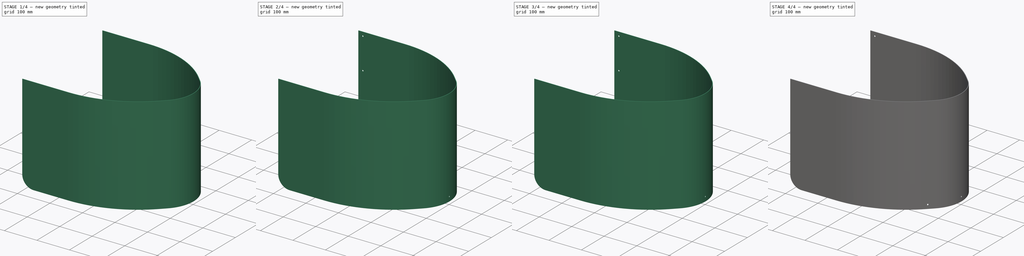
[diagram: build sequence overview — one tinted view per stage of 4, left to right]
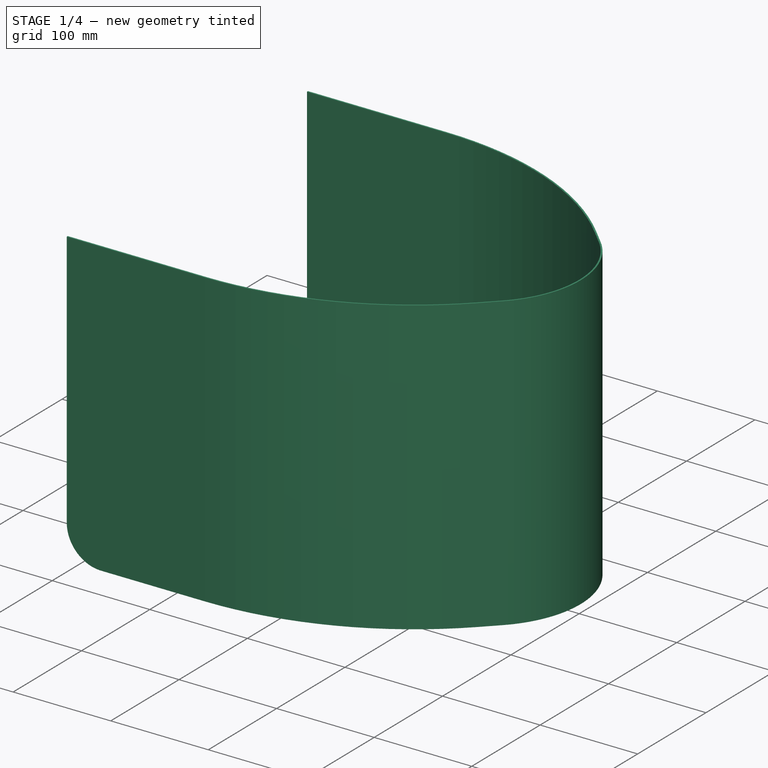
[diagram: stage 1 of 4 — iso view after this stage's code; geometry added in this stage tinted green]
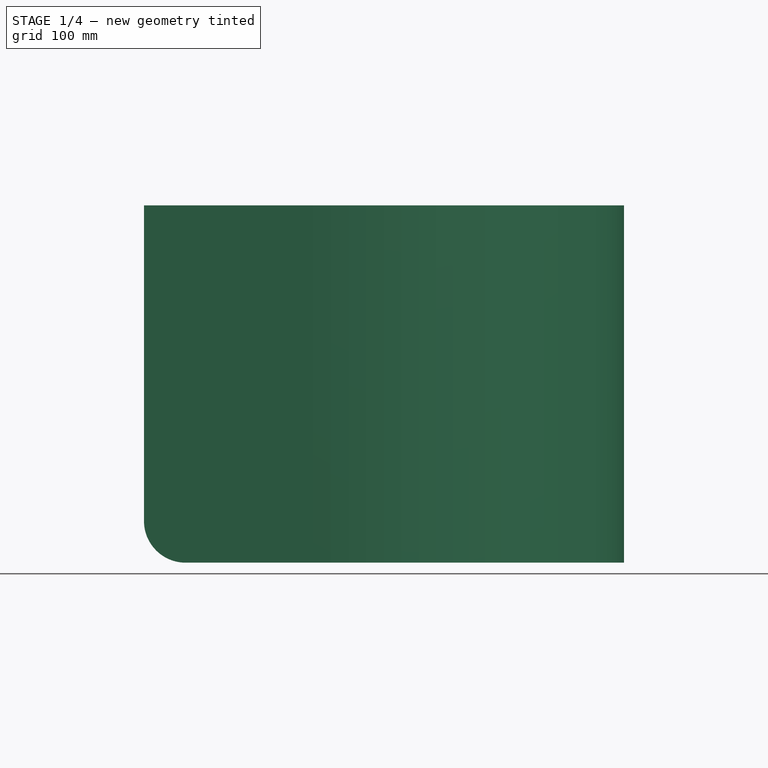
[diagram: stage 1 of 4 — front view after this stage's code; geometry added in this stage tinted green]
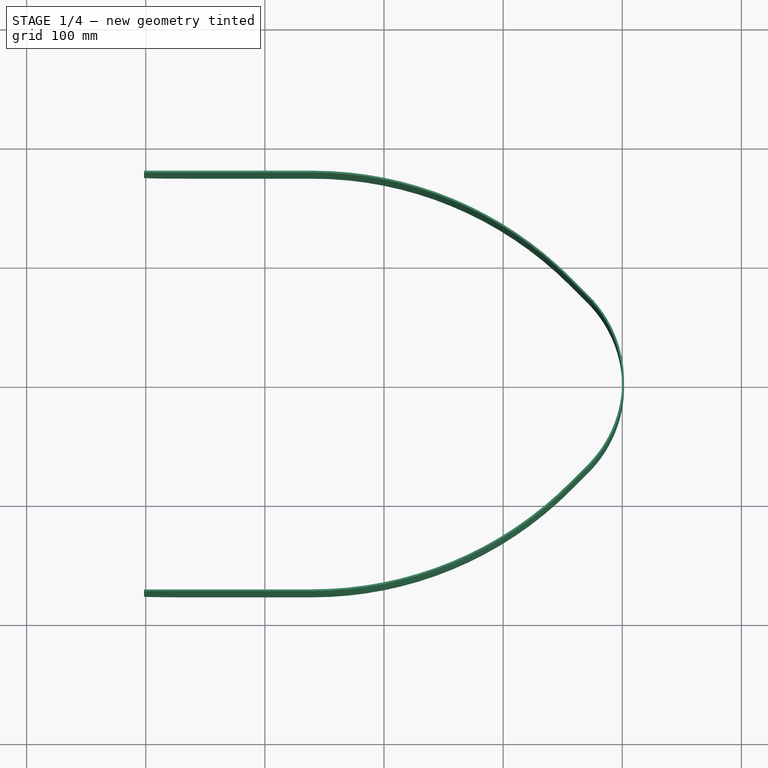
[diagram: stage 1 of 4 — top view after this stage's code; geometry added in this stage tinted green]
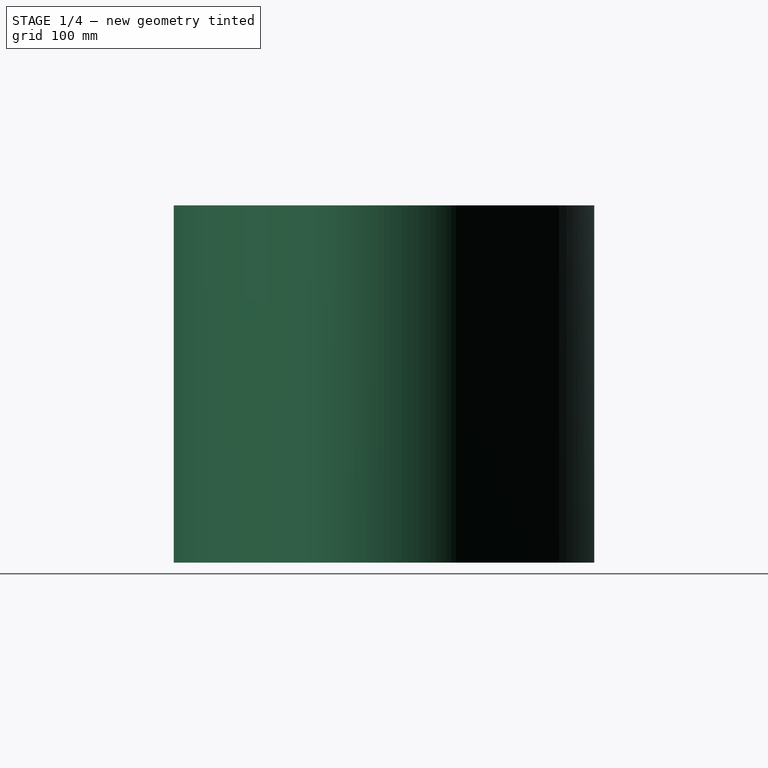
[diagram: stage 1 of 4 — right view after this stage's code; geometry added in this stage tinted green]
FCSTD DOCUMENT  (FreeCAD 0.20R29410 (Git))
Label: Tailbox Exterior
License: All rights reserved
LicenseURL: http://en.wikipedia.org/wiki/All_rights_reserved
objects: TechDraw::DrawViewDimension×20, Sketcher::SketchObject×8, PartDesign::Pocket×6, PartDesign::Plane×5, PartDesign::Mirrored×2, PartDesign::Pad×1, PartDesign::Thickness×1, TechDraw::DrawSVGTemplate×1, PartDesign::Fillet×1, PartDesign::Body×1, TechDraw::DrawViewPart×1, TechDraw::DrawPage×1, Spreadsheet::Sheet×1
note: 34 computed .brp shape members not serialized (recipe doc carries the construction recipe); baked Part::Feature solids carry a one-line shape summary decoded from their .brp
EXTERNAL_REF file=Tailbox.FCStd obj=Spreadsheet

FEATURE [Sketcher::SketchObject] Sketch
  FullyConstrained = true
  MapMode = 3
  Placement = pos=(0,0,0) rot=(1,0,0;3.14159rad)
  Support = -> [XZ_Plane]
  expr: Constraints[16] = <<Tailbox>>#<<dims>>.length
  expr: Constraints[17] = <<Tailbox>>#<<dims>>.width
  expr: Constraints[18] = <<Tailbox>>#<<dims>>.tip_radius
  expr: Constraints[19] = <<Tailbox>>#<<dims>>.taper_angle
  expr: Constraints[20] = <<Tailbox>>#<<dims>>.straight_dist
  expr: Constraints[21] = -<<Tailbox>>#<<dims>>.thickness
  sketch-geometry (14):
    g0: LineSegment StartX=140 StartY=175 StartZ=0 EndX=-1.5 EndY=175 EndZ=0
    g1: LineSegment StartX=-1.5 StartY=175 StartZ=0 EndX=-1.5 EndY=-175 EndZ=0
    g2: LineSegment StartX=-1.5 StartY=-175 StartZ=0 EndX=140 EndY=-175 EndZ=0
    g3: LineSegment StartX=355.815 StartY=85.6066 StartZ=0 EndX=370.711 EndY=70.7107 EndZ=0
    g4: LineSegment StartX=355.815 StartY=-85.6066 StartZ=0 EndX=370.711 EndY=-70.7107 EndZ=0
    g5: ArcOfCircle CenterX=140 CenterY=-130.208 CenterZ=0 NormalX=0 NormalY=0 NormalZ=1 AngleXU=0 Radius=305.208 StartAngle=0.785398 EndAngle=1.5708
    g6: ArcOfCircle CenterX=140 CenterY=130.208 CenterZ=0 NormalX=0 NormalY=0 NormalZ=1 AngleXU=0 Radius=305.208 StartAngle=4.71239 EndAngle=5.49779
    g7: ArcOfCircle CenterX=300 CenterY=0 CenterZ=0 NormalX=0 NormalY=0 NormalZ=1 AngleXU=0 Radius=100 StartAngle=5.49779 EndAngle=7.06858
    g8: LineSegment StartX=0 StartY=0 StartZ=0 EndX=400 EndY=0 EndZ=0
    g9: LineSegment StartX=189.09 StartY=171.026 StartZ=0 EndX=279.636 EndY=141.184 EndZ=0
    g10: LineSegment StartX=279.636 StartY=141.184 StartZ=0 EndX=356.558 EndY=84.8635 EndZ=0
    g11: LineSegment StartX=356.558 StartY=84.8635 StartZ=0 EndX=400 EndY=0 EndZ=0
    g12: LineSegment StartX=93.8365 StartY=175 StartZ=0 EndX=189.09 EndY=171.026 EndZ=0
    g13: LineSegment StartX=-1.5 StartY=175 StartZ=0 EndX=93.8365 EndY=175 EndZ=0
  constraints (38):
    c: Horizontal(g0)
    c: Coincident(g0,g1)
    c: Coincident(g1,g2)
    c: Horizontal(g2)
    c: Tangent(g5,g0) = -1.5708
    c: Tangent(g6,g2) = -1.5708
    c: Equal(g6,g5)
    c: Equal(g0,g2)
    c: Tangent(g5,g3) = 1.5708
    c: Tangent(g6,g4) = -1.5708
    c: Tangent(g7,g4) = -1.5708
    c: Tangent(g7,g3) = 1.5708
    c: PointOnObject(g7,g-1)
    c: Coincident(g8,g-1)
    c: PointOnObject(g8,g7)
    c: Horizontal(g8)
    c: DistanceX(g8,g8) = 400
    c: DistanceY(g1,g1) = 350
    c: Radius(g7) = 100
    c: Angle(g3,g-1) = 0.785398
    c: DistanceX(g0) = 140
    c: DistanceX(g0) = -1.5
    c: Symmetric(g1,g0,g-1)
    c: Coincident(g9,g10)
    c: Coincident(g10,g11)
    c: Coincident(g11,g8)
    c: Coincident(g12,g9)
    c: Coincident(g13,g0)
    c: Coincident(g13,g12)
    c: Horizontal(g13)
    c: Equal(g9,g10)
    c: Equal(g10,g11)
    c: Equal(g11,g12)
    c: Equal(g12,g13)
    c: PointOnObject(g9,g5)
    c: PointOnObject(g9,g5)
    c: PointOnObject(g10,g3)
    c: DistanceX(g13,g13) = 95.3365
FEATURE [PartDesign::Pad] Pad
  AlongSketchNormal = false
  Direction = (0,2e-16,-1)
  Length = 300
  Length2 = 300
  Placement = pos=(0,0,0) rot=(1,0,0;1.5708rad)
  Profile = -> Sketch
  ReferenceAxis = -> Sketch [N_Axis]
  Reversed = true
  Type = 0
  expr: Length = <<Tailbox>>#<<dims>>.height
FEATURE [PartDesign::Thickness] Thickness
  Base = -> Pad [Face9,Face3,Face10]
  BaseFeature = -> Pad
  Intersection = false
  Join = 0
  Mode = 0
  SupportTransform = false
  Value = 1.5
  expr: Value = <<Tailbox>>#<<dims>>.thickness
FEATURE [TechDraw::DrawSVGTemplate] Template
  EditableTexts = Designed_by_Name=Designed by Name; Drawing_number=Drawing number; FC-Date=Date; FC-SC=Scale; FC-SH=Sheet; FC-Title=Title; Subtitle=Subtitle; Weight=Weight
  Height = 210
  Orientation = 1
  Width = 297
FEATURE [PartDesign::Plane] DatumPlane  label="TipPlane"
  AttachmentOffset = pos=(0,0,398) rot=(0,0,1;0rad)
  Length = 420.742
  MapMode = 5
  Placement = pos=(398,-8.84e-14,8.84e-14) rot=(0.57735,0.57735,0.57735;2.0944rad)
  ResizeMode = 0
  Support = -> [YZ_Plane]
  Width = 392.742
  expr: .AttachmentOffset.Base.z = Tailbox#<<dims>>.length - 2
FEATURE [Sketcher::SketchObject] Sketch004
  FullyConstrained = true
  MapMode = 5
  Placement = pos=(398,-8.84e-14,8.84e-14) rot=(0.57735,0.57735,0.57735;2.0944rad)
  Support = -> [DatumPlane]
  expr: Constraints[1] = Tailbox#<<dims>>.bolt_inset + Tailbox#<<dims>>.thickness
  expr: Constraints[2] = Tailbox#<<dims>>.bolt_d
  sketch-geometry (1):
    g0: Circle CenterX=0 CenterY=13.5 CenterZ=0 NormalX=0 NormalY=0 NormalZ=1 AngleXU=0 Radius=2.1
  constraints (3):
    c: PointOnObject(g0,g-2)
    c: DistanceY(g0) = 13.5
    c: Diameter(g0) = 4.2
FEATURE [Sketcher::SketchObject] Sketch006
  ExternalGeometry = -> [Sketch]
  FullyConstrained = true
  MapMode = 5
  Support = -> [XY_Plane]
  sketch-geometry (5):
    g0: LineSegment StartX=-1.5 StartY=175 StartZ=0 EndX=93.8365 EndY=175 EndZ=0
    g1: LineSegment StartX=93.8365 StartY=175 StartZ=0 EndX=189.09 EndY=171.026 EndZ=0
    g2: LineSegment StartX=189.09 StartY=171.026 StartZ=0 EndX=279.636 EndY=141.184 EndZ=0
    g3: LineSegment StartX=279.636 StartY=141.184 StartZ=0 EndX=356.558 EndY=84.8635 EndZ=0
    g4: LineSegment StartX=356.558 StartY=84.8635 StartZ=0 EndX=400 EndY=0 EndZ=0
  constraints (15):
    c: Coincident(g-3,g0)
    c: PointOnObject(g0,g-3)
    c: Coincident(g0,g1)
    c: PointOnObject(g1,g-4)
    c: PointOnObject(g2,g-4)
    c: Coincident(g2,g3)
    c: PointOnObject(g3,g-5)
    c: Coincident(g3,g4)
    c: PointOnObject(g4,g-6)
    c: PointOnObject(g4,g-1)
    c: Coincident(g1,g2)
    c: Equal(g0,g1)
    c: Equal(g1,g2)
    c: Equal(g2,g3)
    c: Equal(g3,g4)
FEATURE [PartDesign::Plane] DatumPlane003  label="SidePlane"
  Length = 500.961
  MapMode = 5
  Placement = pos=(0,175,3.89e-14) rot=(-1,0,0;1.5708rad)
  ResizeMode = 0
  Support = -> [Pad]
  Width = 399.461
FEATURE [PartDesign::Fillet] Fillet
  Base = -> Thickness [Edge31,Edge23]
  BaseFeature = -> Thickness
  Radius = 35
  SupportTransform = false
  UseAllEdges = false
  expr: Radius = Tailbox#<<dims>>.corner_radius
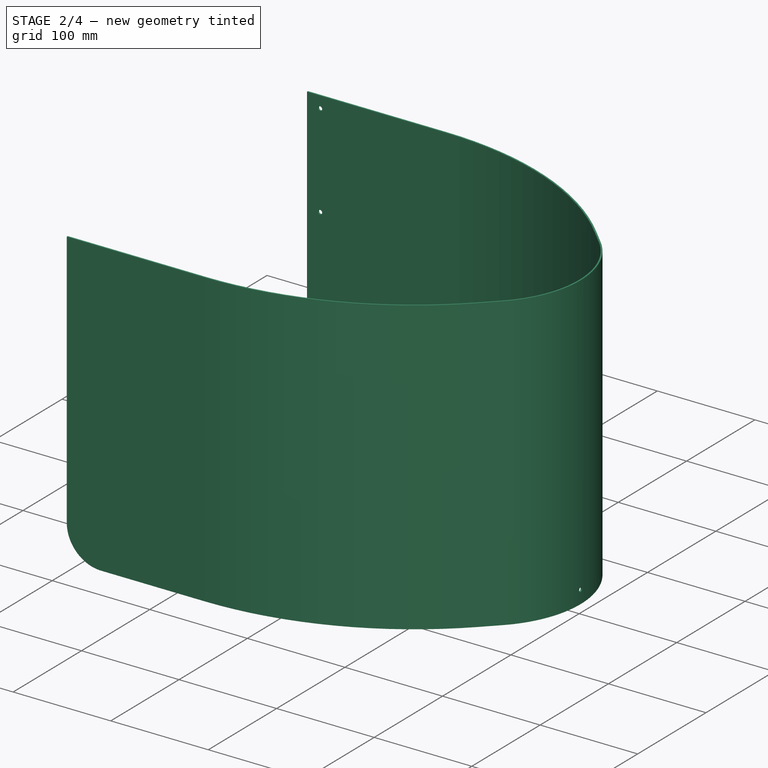
[diagram: stage 2 of 4 — iso view after this stage's code; geometry added in this stage tinted green]
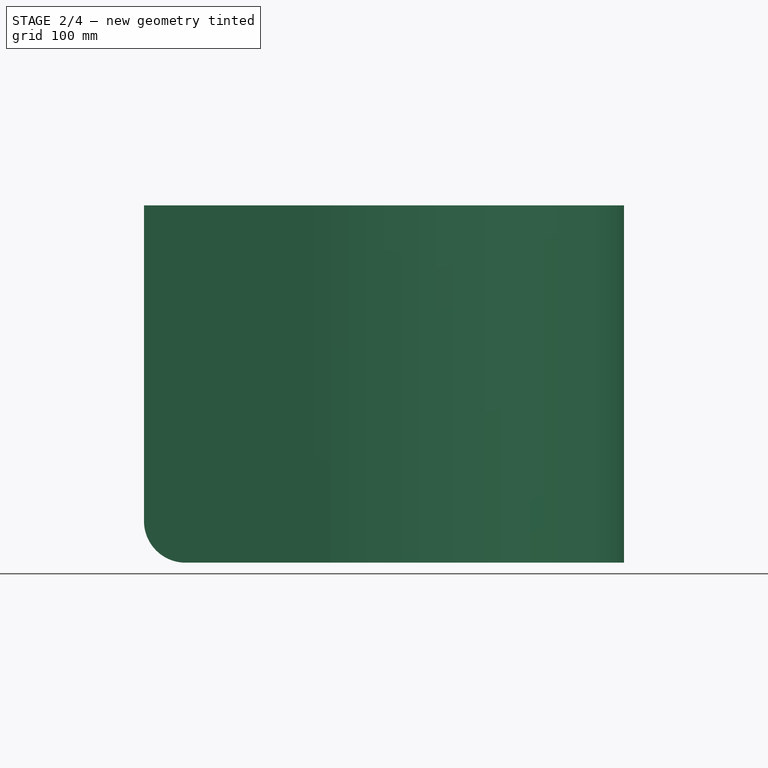
[diagram: stage 2 of 4 — front view after this stage's code; geometry added in this stage tinted green]
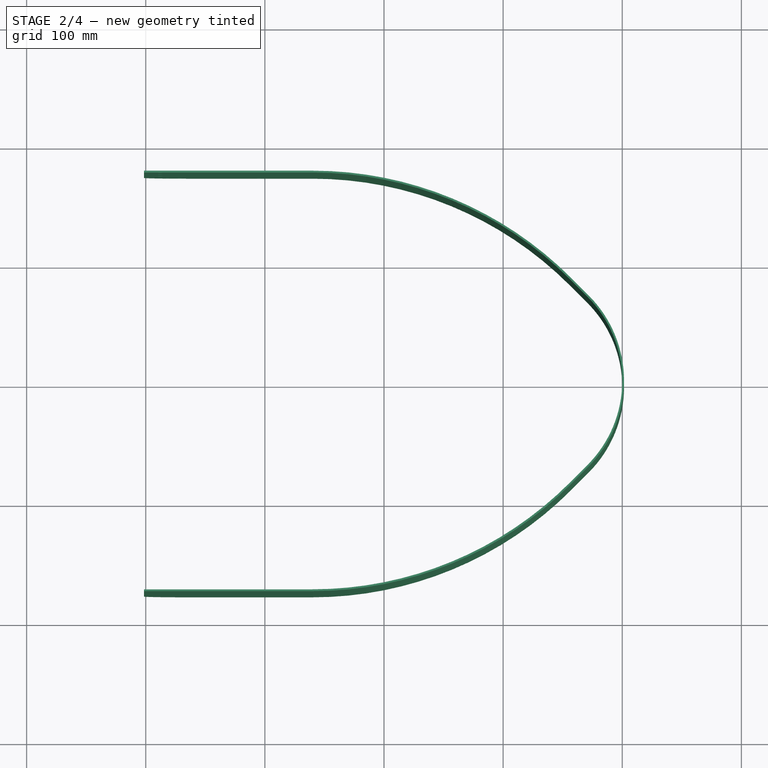
[diagram: stage 2 of 4 — top view after this stage's code; geometry added in this stage tinted green]
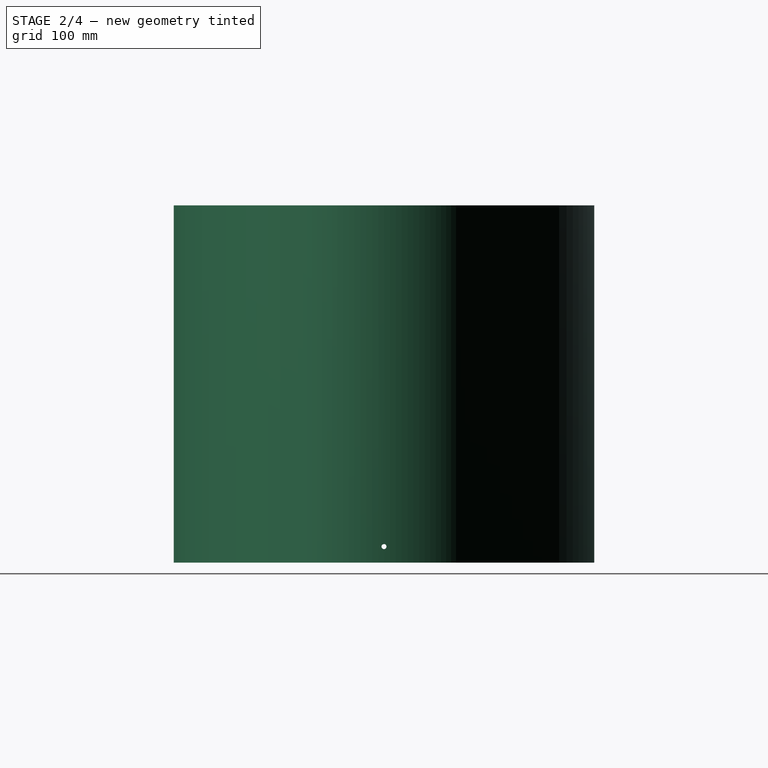
[diagram: stage 2 of 4 — right view after this stage's code; geometry added in this stage tinted green]
FEATURE [Sketcher::SketchObject] Sketch003
  ExternalGeometry = -> [Fillet]
  FullyConstrained = true
  MapMode = 5
  Placement = pos=(0,175,3.89e-14) rot=(-1,0,0;1.5708rad)
  Support = -> [DatumPlane003]
  expr: Constraints[15] = Tailbox#<<dims>>.bolt_inset + Tailbox#<<dims>>.thickness
  expr: Constraints[22] = Tailbox#<<dims>>.bolt_d
  sketch-geometry (10):
    g0: Circle CenterX=18.2972 CenterY=-19.7972 CenterZ=0 NormalX=0 NormalY=0 NormalZ=1 AngleXU=0 Radius=2.1
    g1: Circle CenterX=28.9038 CenterY=-30.4038 CenterZ=0 NormalX=0 NormalY=0 NormalZ=1 AngleXU=0 Radius=2.1
    g2: LineSegment StartX=33.5 StartY=-6.39e-14 StartZ=0 EndX=18.2972 EndY=-19.7972 EndZ=0
    g3: LineSegment StartX=18.2972 StartY=-19.7972 StartZ=0 EndX=-1.5 EndY=-35 EndZ=0
    g4: LineSegment StartX=-1.5 StartY=-35 StartZ=0 EndX=28.9038 EndY=-30.4038 EndZ=0
    g5: LineSegment StartX=28.9038 StartY=-30.4038 StartZ=0 EndX=33.5 EndY=-6.39e-14 EndZ=0
    g6: LineSegment StartX=28.9038 StartY=-30.4038 StartZ=0 EndX=18.2972 EndY=-19.7972 EndZ=0
    g7: LineSegment StartX=33.5 StartY=-6.39e-14 StartZ=0 EndX=8.75126 EndY=-10.2513 EndZ=0
    g8: LineSegment StartX=8.75126 StartY=-10.2513 StartZ=0 EndX=-1.5 EndY=-35 EndZ=0
    g9: LineSegment StartX=18.2972 StartY=-19.7972 StartZ=0 EndX=8.75126 EndY=-10.2513 EndZ=0
  constraints (23):
    c: Coincident(g2,g3)
    c: Coincident(g3,g4)
    c: Coincident(g4,g5)
    c: Coincident(g5,g2)
    c: Coincident(g0,g2)
    c: Coincident(g1,g4)
    c: Equal(g2,g3)
    c: Equal(g4,g5)
    c: Distance(g6) = 15
    c: Coincident(g6,g0)
    c: Coincident(g6,g1)
    c: Coincident(g7,g8)
    c: Coincident(g3,g8)
    c: Coincident(g2,g7)
    c: Coincident(g7,g9)
    c: Distance(g9) = 13.5
    c: Coincident(g0,g9)
    c: Equal(g1,g0)
    c: PointOnObject(g8,g-3)
    c: Coincident(g3,g-3)
    c: Coincident(g2,g-3)
    c: Parallel(g9,g6)
    c: Diameter(g1) = 4.2
FEATURE [PartDesign::Pocket] Pocket
  BaseFeature = -> Fillet
  Direction = (0,-1,-2e-16)
  Length = 4.5
  Length2 = 5
  Midplane = true
  Profile = -> Sketch003
  ReferenceAxis = -> Sketch003 [N_Axis]
  Type = 0
  expr: Length = 3 * <<Tailbox>>#<<dims>>.thickness
FEATURE [PartDesign::Pocket] Pocket001
  BaseFeature = -> Pocket
  Direction = (-1,1e-16,-1e-16)
  Length = 7.5
  Length2 = 5
  Midplane = true
  Profile = -> Sketch004
  ReferenceAxis = -> Sketch004 [N_Axis]
  Type = 0
  expr: Length = 5 * Tailbox#<<dims>>.thickness
FEATURE [Sketcher::SketchObject] Sketch005
  ExternalGeometry = -> [Pocket001]
  FullyConstrained = true
  MapMode = 5
  Placement = pos=(0,175,3.89e-14) rot=(-1,0,0;1.5708rad)
  Support = -> [DatumPlane003]
  expr: Constraints[15] = Tailbox#<<dims>>.bolt_inset
  expr: Constraints[1] = -Tailbox#<<dims>>.bolt_inset - Tailbox#<<dims>>.thickness
  expr: Constraints[21] = Tailbox#<<dims>>.bolt_inset
  expr: Constraints[4] = Tailbox#<<dims>>.bolt_inset
  expr: Constraints[5] = Tailbox#<<dims>>.bolt_d
  sketch-geometry (8):
    g0: Circle CenterX=95 CenterY=-13.5 CenterZ=0 NormalX=0 NormalY=0 NormalZ=1 AngleXU=0 Radius=2.1
    g1: Circle CenterX=12 CenterY=-192 CenterZ=0 NormalX=0 NormalY=0 NormalZ=1 AngleXU=0 Radius=2.1
    g2: Circle CenterX=12 CenterY=-96 CenterZ=0 NormalX=0 NormalY=0 NormalZ=1 AngleXU=0 Radius=2.1
    g3: LineSegment StartX=95 StartY=-13.5 StartZ=0 EndX=12 EndY=-13.5 EndZ=0
    g4: LineSegment StartX=12 StartY=-96 StartZ=0 EndX=12 EndY=-192 EndZ=0
    g5: LineSegment StartX=12 StartY=-192 StartZ=0 EndX=12 EndY=-288 EndZ=0
    g6: Circle CenterX=12 CenterY=-288 CenterZ=0 NormalX=0 NormalY=0 NormalZ=1 AngleXU=0 Radius=2.1
    g7: LineSegment StartX=12 StartY=-96 StartZ=0 EndX=12 EndY=0 EndZ=0
  constraints (22):
    c: DistanceX(g0,g-1) = -95
    c: DistanceY(g0) = -13.5
    c: Coincident(g3,g0)
    c: Horizontal(g3)
    c: DistanceX(g3) = 12
    c: Diameter(g0) = 4.2
    c: Coincident(g4,g1)
    c: Coincident(g2,g4)
    c: Vertical(g4)
    c: Equal(g1,g2)
    c: Coincident(g5,g4)
    c: Vertical(g5)
    c: Equal(g5,g4)
    c: Coincident(g6,g5)
    c: Equal(g6,g1)
    c: DistanceY(g-3,g5) = 12
    c: Equal(g2,g0)
    c: PointOnObject(g7,g-1)
    c: Coincident(g2,g7)
    c: Vertical(g7)
    c: Equal(g4,g7)
    c: DistanceX(g7) = 12
FEATURE [PartDesign::Pocket] Pocket002
  BaseFeature = -> Pocket001
  Direction = (0,-1,-2e-16)
  Length = 4.5
  Length2 = 5
  Midplane = true
  Profile = -> Sketch005
  ReferenceAxis = -> Sketch005 [N_Axis]
  Type = 0
  expr: Length = 3 * Tailbox#<<dims>>.thickness
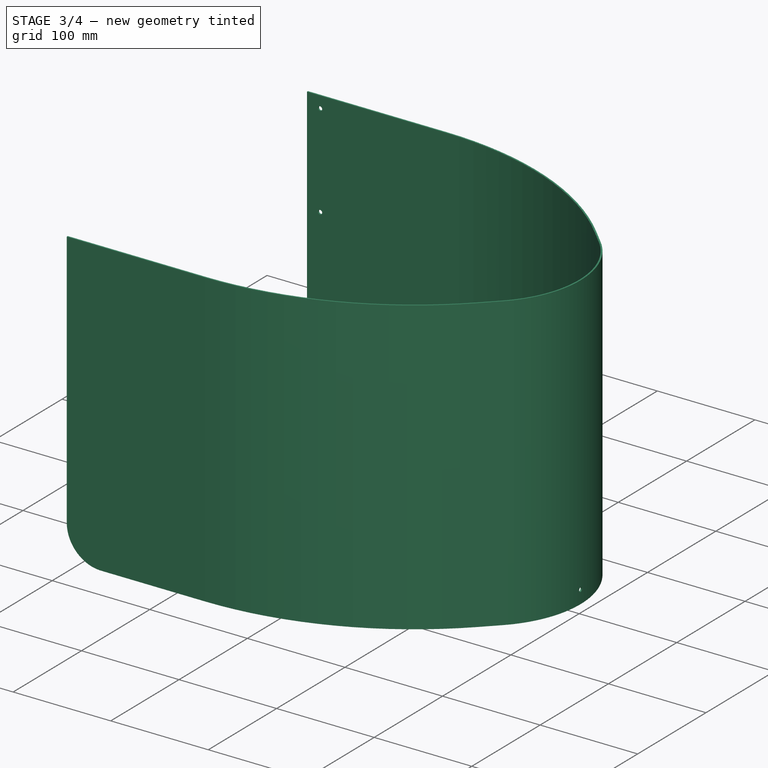
[diagram: stage 3 of 4 — iso view after this stage's code; geometry added in this stage tinted green]
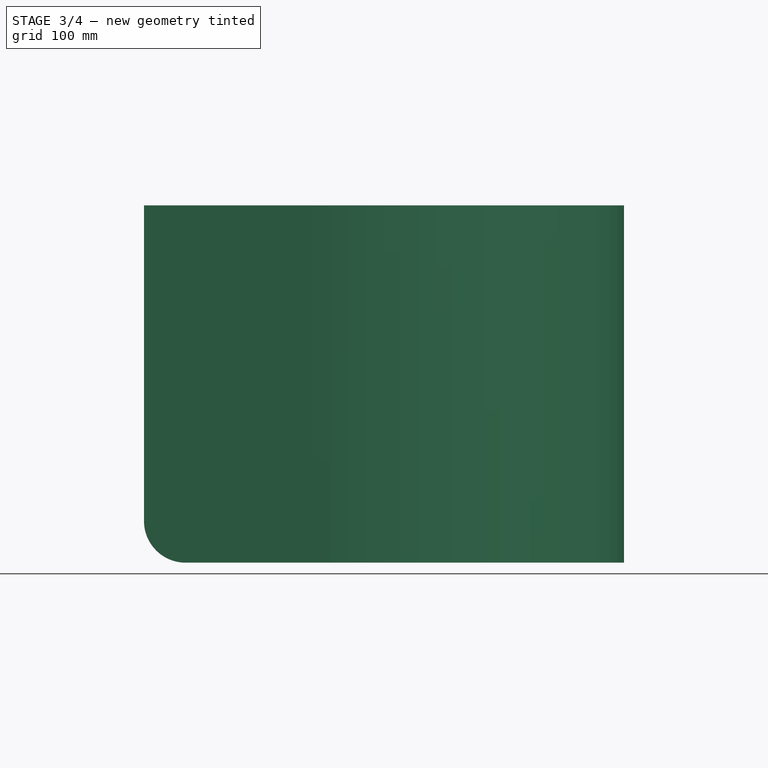
[diagram: stage 3 of 4 — front view after this stage's code; geometry added in this stage tinted green]
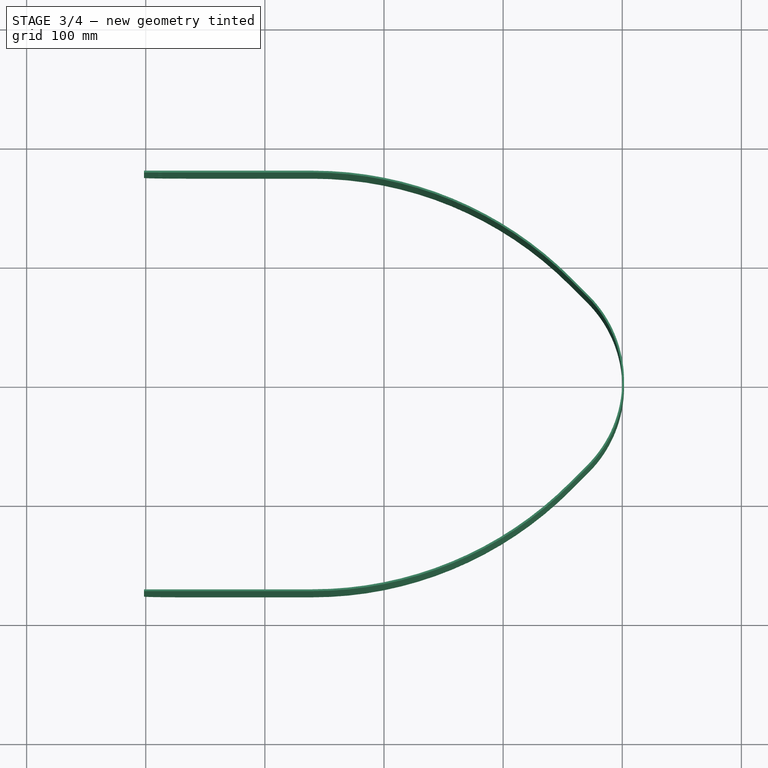
[diagram: stage 3 of 4 — top view after this stage's code; geometry added in this stage tinted green]
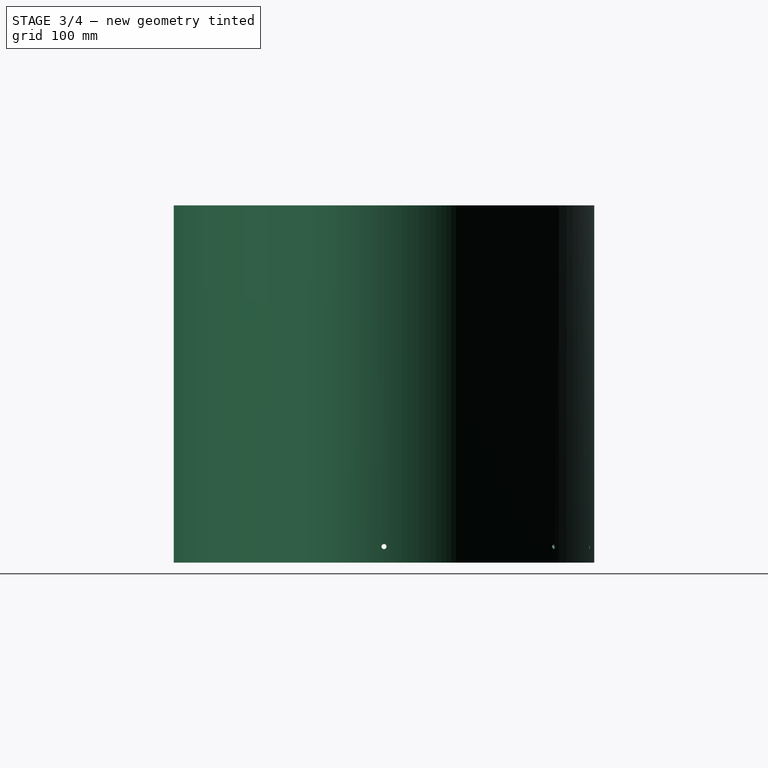
[diagram: stage 3 of 4 — right view after this stage's code; geometry added in this stage tinted green]
FEATURE [PartDesign::Plane] DatumPlane004
  Length = 556.53
  MapMode = 6
  Placement = pos=(189.09,171.026,0) rot=(0.993511,-0.080422,-0.080422;1.57731rad)
  ResizeMode = 0
  Support = -> [Sketch006,Pocket002]
  Width = 403.806
FEATURE [Sketcher::SketchObject] Sketch008
  FullyConstrained = true
  MapMode = 5
  Placement = pos=(189.09,171.026,0) rot=(0.993511,-0.080422,-0.080422;1.57731rad)
  Support = -> [DatumPlane004]
  expr: Constraints[1] = Tailbox#<<dims>>.bolt_inset + Tailbox#<<dims>>.thickness
  expr: Constraints[2] = Tailbox#<<dims>>.bolt_d
  sketch-geometry (1):
    g0: Circle CenterX=0 CenterY=13.5 CenterZ=0 NormalX=0 NormalY=0 NormalZ=1 AngleXU=0 Radius=2.1
  constraints (3):
    c: PointOnObject(g0,g-2)
    c: DistanceY(g0) = 13.5
    c: Diameter(g0) = 4.2
FEATURE [PartDesign::Pocket] Pocket003
  BaseFeature = -> Pocket002
  Direction = (0.160841,0.98698,1e-16)
  Length = 4.5
  Length2 = 5
  Midplane = true
  Profile = -> Sketch008
  ReferenceAxis = -> Sketch008 [N_Axis]
  Type = 0
  expr: Length = 3 * Tailbox#<<dims>>.thickness
FEATURE [PartDesign::Plane] DatumPlane005
  Length = 624.59
  MapMode = 6
  Placement = pos=(279.636,141.184,0) rot=(0.946055,-0.229107,-0.229107;1.62622rad)
  ResizeMode = 0
  Support = -> [Sketch006,Pocket003]
  Width = 408.843
FEATURE [Sketcher::SketchObject] Sketch009
  FullyConstrained = true
  MapMode = 5
  Placement = pos=(279.636,141.184,0) rot=(0.946055,-0.229107,-0.229107;1.62622rad)
  Support = -> [DatumPlane005]
  expr: Constraints[1] = Tailbox#<<dims>>.bolt_inset + Tailbox#<<dims>>.thickness
  expr: Constraints[2] = Tailbox#<<dims>>.bolt_d
  sketch-geometry (1):
    g0: Circle CenterX=0 CenterY=13.5 CenterZ=0 NormalX=0 NormalY=0 NormalZ=1 AngleXU=0 Radius=2.1
  constraints (3):
    c: PointOnObject(g0,g-2)
    c: DistanceY(g0) = 13.5
    c: Diameter(g0) = 4.2
FEATURE [PartDesign::Pocket] Pocket004
  BaseFeature = -> Pocket003
  Direction = (0.45751,0.889205,1e-16)
  Length = 4.5
  Length2 = 5
  Midplane = true
  Profile = -> Sketch009
  ReferenceAxis = -> Sketch009 [N_Axis]
  Type = 0
  expr: Length = 3 * Tailbox#<<dims>>.thickness
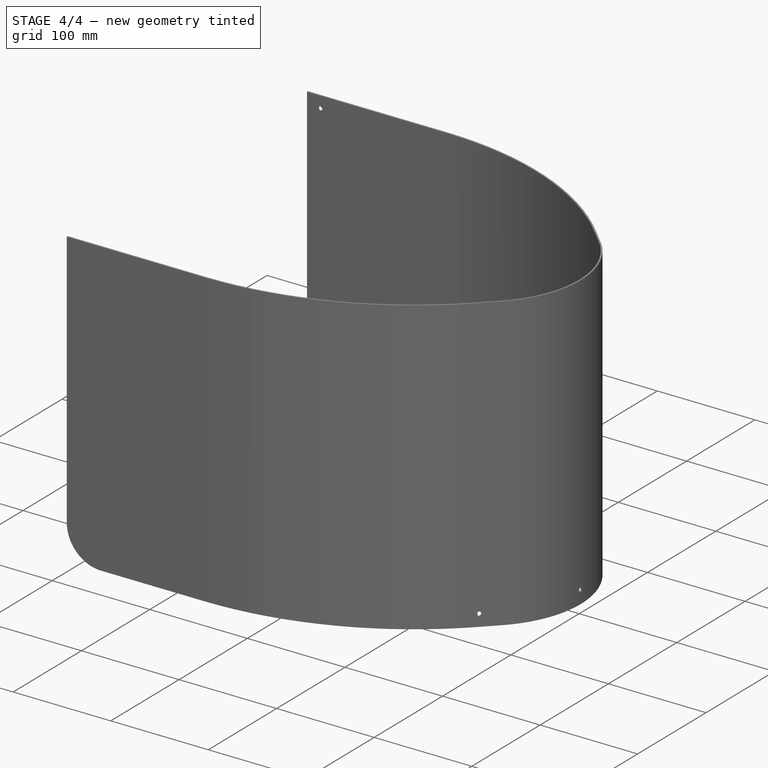
[diagram: stage 4 of 4 — iso view after this stage's code; geometry added in this stage tinted green]
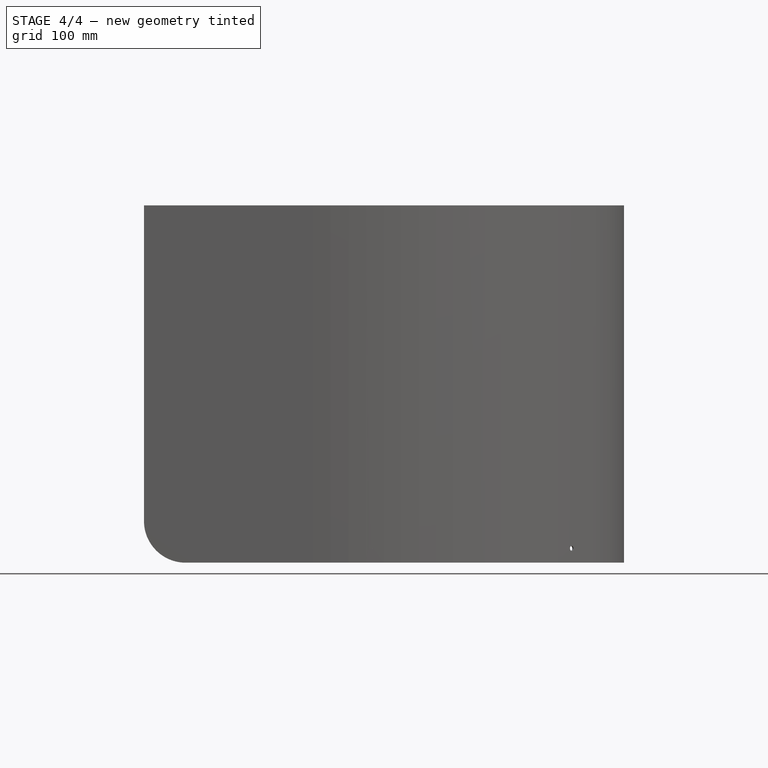
[diagram: stage 4 of 4 — front view after this stage's code; geometry added in this stage tinted green]
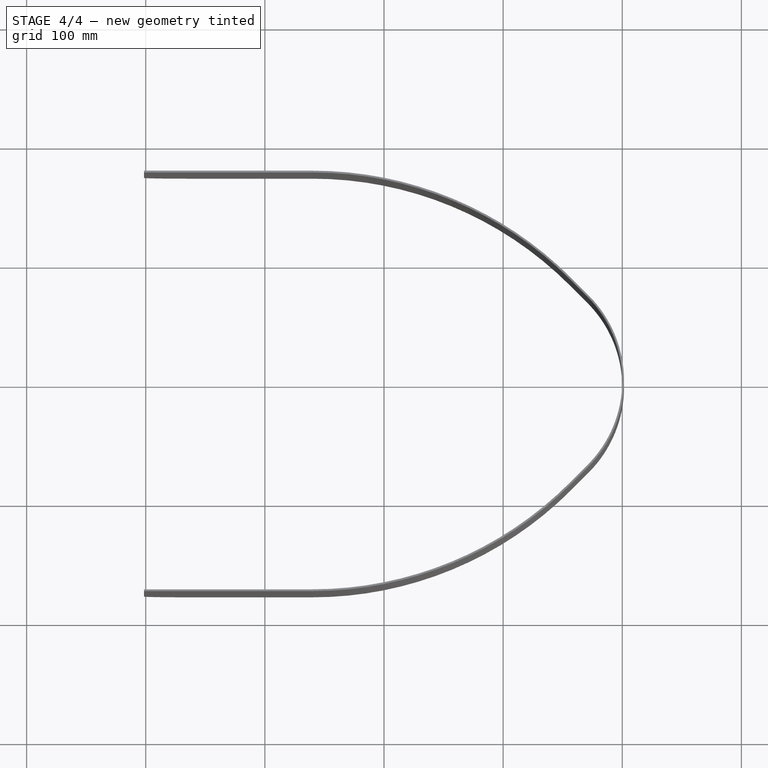
[diagram: stage 4 of 4 — top view after this stage's code; geometry added in this stage tinted green]
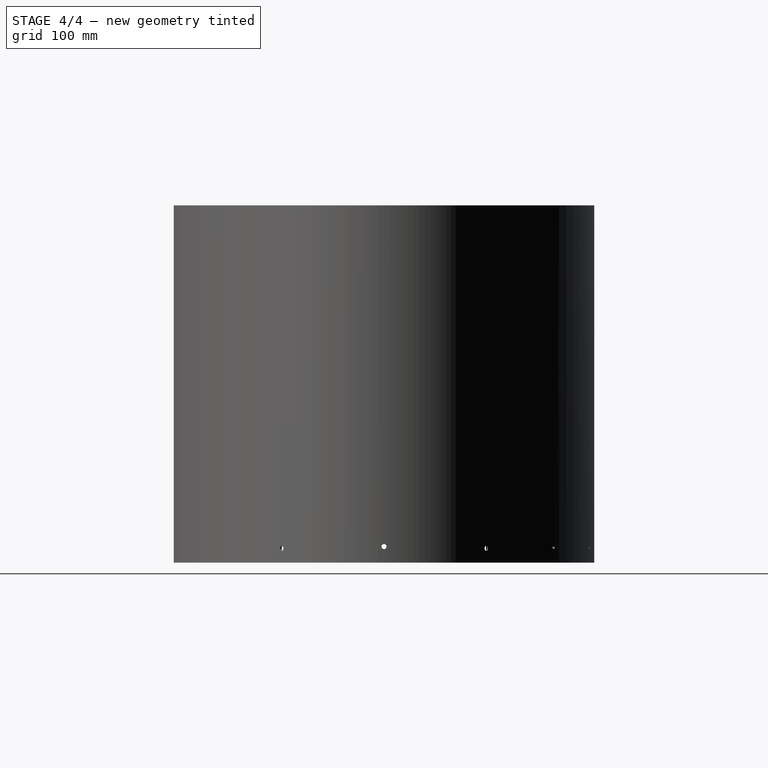
[diagram: stage 4 of 4 — right view after this stage's code; geometry added in this stage tinted green]
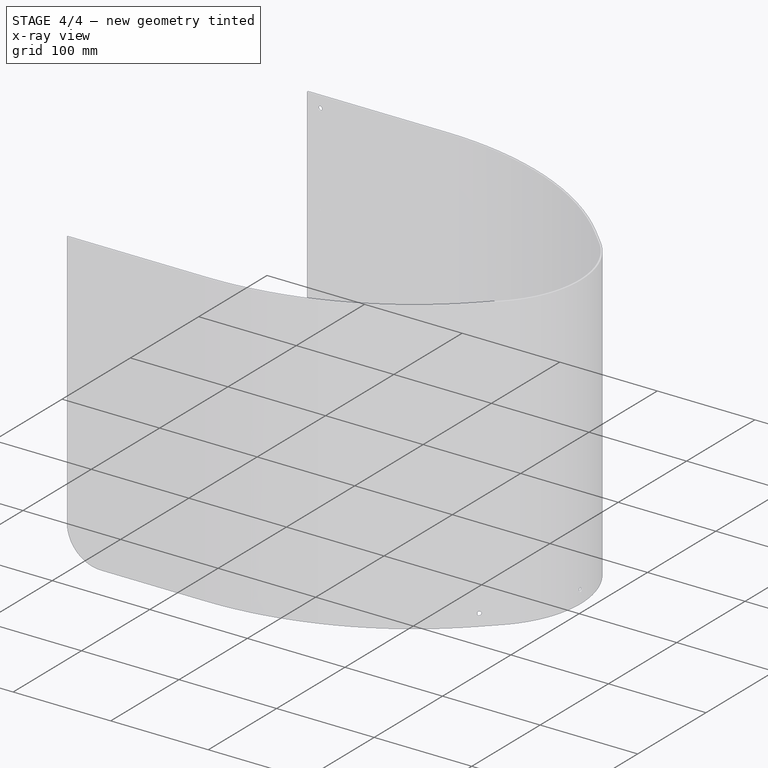
[diagram: stage 4 of 4 — x-ray composite at the iso view; earlier geometry ghosted, this stage's added geometry solid]
FEATURE [PartDesign::Plane] DatumPlane006
  Length = 635.839
  MapMode = 5
  Placement = pos=(220.711,220.711,4.9e-14) rot=(0.862856,-0.357407,-0.357407;1.71777rad)
  ResizeMode = 0
  Support = -> [Pocket004]
  Width = 409.649
FEATURE [Sketcher::SketchObject] Sketch010
  ExternalGeometry = -> [Sketch006]
  FullyConstrained = true
  MapMode = 5
  Placement = pos=(220.711,220.711,4.9e-14) rot=(0.862856,-0.357407,-0.357407;1.71777rad)
  Support = -> [DatumPlane006]
  expr: Constraints[3] = Tailbox#<<dims>>.bolt_inset
  expr: Constraints[4] = Tailbox#<<dims>>.bolt_d
  sketch-geometry (2):
    g0: Circle CenterX=192.117 CenterY=12 CenterZ=0 NormalX=0 NormalY=0 NormalZ=1 AngleXU=0 Radius=2.1
    g1: LineSegment StartX=192.117 StartY=-7.54e-14 StartZ=0 EndX=192.117 EndY=12 EndZ=0
  constraints (5):
    c: Coincident(g1,g-3)
    c: Coincident(g1,g0)
    c: Vertical(g1)
    c: DistanceY(g0) = 12
    c: Diameter(g0) = 4.2
FEATURE [PartDesign::Mirrored] Mirrored
  BaseFeature = -> Pocket004
  MirrorPlane = -> XZ_Plane
FEATURE [PartDesign::Pocket] Pocket005
  BaseFeature = -> Pocket004
  Direction = (0.707107,0.707107,2e-16)
  Length = 4.5
  Length2 = 5
  Midplane = true
  Profile = -> Sketch010
  ReferenceAxis = -> Sketch010 [N_Axis]
  Type = 0
  expr: Length = 3 * Tailbox#<<dims>>.thickness
FEATURE [PartDesign::Mirrored] Mirrored001
  BaseFeature = -> Pocket005
  MirrorPlane = -> XZ_Plane
  Originals = -> [Pocket001,Pocket002,Pocket003,Pocket004,Pocket005,Pocket]
FEATURE [PartDesign::Body] Body
  Group = -> [Sketch,Pad,Thickness,Fillet,DatumPlane003,Sketch003,DatumPlane,Sketch004,Pocket,Sketch005,Pocket001,Sketch006,Sketch008,DatumPlane004,DatumPlane005,Pocket002,Sketch009,Pocket003,DatumPlane006,Sketch010,Pocket004,Mirrored,Pocket005,Mirrored001]
  Origin = -> Origin
  Tip = -> Mirrored001
FEATURE [TechDraw::DrawViewPart] View
  CoarseView = false
  Direction = (0,1,0)
  Focus = 100
  HardHidden = false
  IsoCount = 0
  IsoHidden = false
  IsoVisible = false
  LockPosition = false
  Perspective = false
  Rotation = 180
  Scale = 0.2
  ScaleType = 0
  SeamHidden = false
  SeamVisible = true
  SmoothHidden = false
  SmoothVisible = true
  X = 160.436
  XDirection = (1,0,0)
  Y = 140.868
FEATURE [TechDraw::DrawViewDimension] Dimension
  AngleOverride = false
  Arbitrary = false
  ArbitraryTolerances = false
  EqualTolerance = true
  ExtensionAngle = 0
  FormatSpec = %.2w
  FormatSpecOverTolerance = %+.2w
  FormatSpecUnderTolerance = %+.2w
  Inverted = false
  LineAngle = 0
  LockPosition = false
  MeasureType = 1
  OverTolerance = 0
  References2D = -> [View]
  Rotation = 0
  Scale = 0.2
  ScaleType = 0
  TheoreticalExact = false
  Type = 1
  UnderTolerance = 0
  X = -0.533211
  Y = 40.587
FEATURE [TechDraw::DrawViewDimension] Dimension001
  AngleOverride = false
  Arbitrary = false
  ArbitraryTolerances = false
  EqualTolerance = true
  ExtensionAngle = 0
  FormatSpec = %.2w
  FormatSpecOverTolerance = %+.2w
  FormatSpecUnderTolerance = %+.2w
  Inverted = false
  LineAngle = 0
  LockPosition = false
  MeasureType = 1
  OverTolerance = 0
  References2D = -> [View]
  Rotation = 0
  Scale = 0.2
  ScaleType = 0
  TheoreticalExact = false
  Type = 2
  UnderTolerance = 0
  X = -133.859
  Y = 3.40576
FEATURE [TechDraw::DrawViewDimension] Dimension002
  AngleOverride = false
  Arbitrary = false
  ArbitraryTolerances = false
  EqualTolerance = true
  ExtensionAngle = 0
  FormatSpec = %.2w
  FormatSpecOverTolerance = %+.2w
  FormatSpecUnderTolerance = %+.2w
  Inverted = false
  LineAngle = 0
  LockPosition = false
  MeasureType = 1
  OverTolerance = 0
  References2D = -> [View]
  Rotation = 0
  Scale = 0.2
  ScaleType = 0
  TheoreticalExact = false
  Type = 2
  UnderTolerance = 0
  X = -101.834
  Y = -11.8601
FEATURE [TechDraw::DrawViewDimension] Dimension003
  AngleOverride = false
  Arbitrary = false
  ArbitraryTolerances = false
  EqualTolerance = true
  ExtensionAngle = 0
  FormatSpec = %.2w
  FormatSpecOverTolerance = %+.2w
  FormatSpecUnderTolerance = %+.2w
  Inverted = false
  LineAngle = 0
  LockPosition = false
  MeasureType = 1
  OverTolerance = 0
  References2D = -> [View]
  Rotation = 0
  Scale = 0.2
  ScaleType = 0
  TheoreticalExact = false
  Type = 2
  UnderTolerance = 0
  X = -108.408
  Y = -12.3173
FEATURE [TechDraw::DrawViewDimension] Dimension004
  AngleOverride = false
  Arbitrary = false
  ArbitraryTolerances = false
  EqualTolerance = true
  ExtensionAngle = 0
  FormatSpec = %.2w
  FormatSpecOverTolerance = %+.2w
  FormatSpecUnderTolerance = %+.2w
  Inverted = false
  LineAngle = 0
  LockPosition = false
  MeasureType = 1
  OverTolerance = 0
  References2D = -> [View]
  Rotation = 0
  Scale = 0.2
  ScaleType = 0
  TheoreticalExact = false
  Type = 2
  UnderTolerance = 0
  X = -114.721
  Y = 3.3193
FEATURE [TechDraw::DrawViewDimension] Dimension005
  AngleOverride = false
  Arbitrary = false
  ArbitraryTolerances = false
  EqualTolerance = true
  ExtensionAngle = 0
  FormatSpec = %.2w
  FormatSpecOverTolerance = %+.2w
  FormatSpecUnderTolerance = %+.2w
  Inverted = false
  LineAngle = 0
  LockPosition = false
  MeasureType = 1
  OverTolerance = 0
  References2D = -> [View]
  Rotation = 0
  Scale = 0.2
  ScaleType = 0
  TheoreticalExact = false
  Type = 2
  UnderTolerance = 0
  X = -120.905
  Y = -7.10706
FEATURE [TechDraw::DrawViewDimension] Dimension006
  AngleOverride = false
  Arbitrary = false
  ArbitraryTolerances = false
  EqualTolerance = true
  ExtensionAngle = 0
  FormatSpec = %.2w
  FormatSpecOverTolerance = %+.2w
  FormatSpecUnderTolerance = %+.2w
  Inverted = false
  LineAngle = 0
  LockPosition = false
  MeasureType = 1
  OverTolerance = 0
  References2D = -> [View]
  Rotation = 0
  Scale = 0.2
  ScaleType = 0
  TheoreticalExact = false
  Type = 2
  UnderTolerance = 0
  X = -127.429
  Y = 2.87721
FEATURE [TechDraw::DrawViewDimension] Dimension007
  AngleOverride = false
  Arbitrary = false
  ArbitraryTolerances = false
  EqualTolerance = true
  ExtensionAngle = 0
  FormatSpec = %.2w
  FormatSpecOverTolerance = %+.2w
  FormatSpecUnderTolerance = %+.2w
  Inverted = false
  LineAngle = 0
  LockPosition = false
  MeasureType = 1
  OverTolerance = 0
  References2D = -> [View]
  Rotation = 0
  Scale = 0.2
  ScaleType = 0
  TheoreticalExact = false
  Type = 1
  UnderTolerance = 0
  X = -106.13
  Y = 22.3875
FEATURE [TechDraw::DrawViewDimension] Dimension008
  AngleOverride = false
  Arbitrary = false
  ArbitraryTolerances = false
  EqualTolerance = true
  ExtensionAngle = 0
  FormatSpec = %.2w
  FormatSpecOverTolerance = %+.2w
  FormatSpecUnderTolerance = %+.2w
  Inverted = false
  LineAngle = 0
  LockPosition = false
  MeasureType = 1
  OverTolerance = 0
  References2D = -> [View]
  Rotation = 0
  Scale = 0.2
  ScaleType = 0
  TheoreticalExact = false
  Type = 2
  UnderTolerance = 0
  X = -68.1858
  Y = -11.2263
FEATURE [TechDraw::DrawViewDimension] Dimension009
  AngleOverride = false
  Arbitrary = false
  ArbitraryTolerances = false
  EqualTolerance = true
  ExtensionAngle = 0
  FormatSpec = %.2w
  FormatSpecOverTolerance = %+.2w
  FormatSpecUnderTolerance = %+.2w
  Inverted = false
  LineAngle = 0
  LockPosition = false
  MeasureType = 1
  OverTolerance = 0
  References2D = -> [View]
  Rotation = 0
  Scale = 0.2
  ScaleType = 0
  TheoreticalExact = false
  Type = 1
  UnderTolerance = 0
  X = -86.6999
  Y = -30.5015
FEATURE [TechDraw::DrawViewDimension] Dimension010
  AngleOverride = false
  Arbitrary = false
  ArbitraryTolerances = false
  EqualTolerance = true
  ExtensionAngle = 0
  FormatSpec = %.2w
  FormatSpecOverTolerance = %+.2w
  FormatSpecUnderTolerance = %+.2w
  Inverted = false
  LineAngle = 0
  LockPosition = false
  MeasureType = 1
  OverTolerance = 0
  References2D = -> [View]
  Rotation = 0
  Scale = 0.2
  ScaleType = 0
  TheoreticalExact = false
  Type = 1
  UnderTolerance = 0
  X = -76.1809
  Y = -38.4728
FEATURE [TechDraw::DrawViewDimension] Dimension011
  AngleOverride = false
  Arbitrary = false
  ArbitraryTolerances = false
  EqualTolerance = true
  ExtensionAngle = 0
  FormatSpec = %.2w
  FormatSpecOverTolerance = %+.2w
  FormatSpecUnderTolerance = %+.2w
  Inverted = false
  LineAngle = 0
  LockPosition = false
  MeasureType = 1
  OverTolerance = 0
  References2D = -> [View]
  Rotation = 0
  Scale = 0.2
  ScaleType = 0
  TheoreticalExact = false
  Type = 1
  UnderTolerance = 0
  X = -49.1848
  Y = -41.7569
FEATURE [TechDraw::DrawViewDimension] Dimension012
  AngleOverride = false
  Arbitrary = false
  ArbitraryTolerances = false
  EqualTolerance = true
  ExtensionAngle = 0
  FormatSpec = %.2w
  FormatSpecOverTolerance = %+.2w
  FormatSpecUnderTolerance = %+.2w
  Inverted = false
  LineAngle = 0
  LockPosition = false
  MeasureType = 1
  OverTolerance = 0
  References2D = -> [View]
  Rotation = 0
  Scale = 0.2
  ScaleType = 0
  TheoreticalExact = false
  Type = 1
  UnderTolerance = 0
  X = -31.5458
  Y = -45.8283
FEATURE [TechDraw::DrawViewDimension] Dimension013
  AngleOverride = false
  Arbitrary = false
  ArbitraryTolerances = false
  EqualTolerance = true
  ExtensionAngle = 0
  FormatSpec = %.2w
  FormatSpecOverTolerance = %+.2w
  FormatSpecUnderTolerance = %+.2w
  Inverted = false
  LineAngle = 0
  LockPosition = false
  MeasureType = 1
  OverTolerance = 0
  References2D = -> [View]
  Rotation = 0
  Scale = 0.2
  ScaleType = 0
  TheoreticalExact = false
  Type = 1
  UnderTolerance = 0
  X = -11.1859
  Y = -48.4458
FEATURE [TechDraw::DrawViewDimension] Dimension014
  AngleOverride = false
  Arbitrary = false
  ArbitraryTolerances = false
  EqualTolerance = true
  ExtensionAngle = 0
  FormatSpec = %.2w
  FormatSpecOverTolerance = %+.2w
  FormatSpecUnderTolerance = %+.2w
  Inverted = false
  LineAngle = 0
  LockPosition = false
  MeasureType = 1
  OverTolerance = 0
  References2D = -> [View]
  Rotation = 0
  Scale = 0.2
  ScaleType = 0
  TheoreticalExact = false
  Type = 1
  UnderTolerance = 0
  X = 51.4058
  Y = -62.087
FEATURE [TechDraw::DrawViewDimension] Dimension015
  AngleOverride = false
  Arbitrary = false
  ArbitraryTolerances = false
  EqualTolerance = true
  ExtensionAngle = 0
  FormatSpec = %.2w
  FormatSpecOverTolerance = %+.2w
  FormatSpecUnderTolerance = %+.2w
  Inverted = false
  LineAngle = 0
  LockPosition = false
  MeasureType = 1
  OverTolerance = 0
  References2D = -> [View]
  Rotation = 0
  Scale = 0.2
  ScaleType = 0
  TheoreticalExact = false
  Type = 1
  UnderTolerance = 0
  X = 104.486
  Y = -27.6459
FEATURE [TechDraw::DrawViewDimension] Dimension016
  AngleOverride = false
  Arbitrary = false
  ArbitraryTolerances = false
  EqualTolerance = true
  ExtensionAngle = 0
  FormatSpec = %.2w
  FormatSpecOverTolerance = %+.2w
  FormatSpecUnderTolerance = %+.2w
  Inverted = false
  LineAngle = 0
  LockPosition = false
  MeasureType = 1
  OverTolerance = 0
  References2D = -> [View]
  Rotation = 0
  Scale = 0.2
  ScaleType = 0
  TheoreticalExact = false
  Type = 1
  UnderTolerance = 0
  X = 106.149
  Y = -33.9066
FEATURE [TechDraw::DrawViewDimension] Dimension017
  AngleOverride = false
  Arbitrary = false
  ArbitraryTolerances = false
  EqualTolerance = true
  ExtensionAngle = 0
  FormatSpec = %.2w
  FormatSpecOverTolerance = %+.2w
  FormatSpecUnderTolerance = %+.2w
  Inverted = false
  LineAngle = 0
  LockPosition = false
  MeasureType = 1
  OverTolerance = 0
  References2D = -> [View]
  Rotation = 0
  Scale = 0.2
  ScaleType = 0
  TheoreticalExact = false
  Type = 1
  UnderTolerance = 0
  X = 86.0345
  Y = -40.4405
FEATURE [TechDraw::DrawViewDimension] Dimension018
  AngleOverride = false
  Arbitrary = false
  ArbitraryTolerances = false
  EqualTolerance = true
  ExtensionAngle = 0
  FormatSpec = %.2w
  FormatSpecOverTolerance = %+.2w
  FormatSpecUnderTolerance = %+.2w
  Inverted = false
  LineAngle = 0
  LockPosition = false
  MeasureType = 1
  OverTolerance = 0
  References2D = -> [View]
  Rotation = 0
  Scale = 0.2
  ScaleType = 0
  TheoreticalExact = false
  Type = 1
  UnderTolerance = 0
  X = 75.0721
  Y = -46.8583
FEATURE [TechDraw::DrawViewDimension] Dimension019
  AngleOverride = false
  Arbitrary = false
  ArbitraryTolerances = false
  EqualTolerance = true
  ExtensionAngle = 0
  FormatSpec = %.2w
  FormatSpecOverTolerance = %+.2w
  FormatSpecUnderTolerance = %+.2w
  Inverted = false
  LineAngle = 0
  LockPosition = false
  MeasureType = 1
  OverTolerance = 0
  References2D = -> [View]
  Rotation = 0
  Scale = 0.2
  ScaleType = 0
  TheoreticalExact = false
  Type = 1
  UnderTolerance = 0
  X = 61.0368
  Y = -54.0264
FEATURE [TechDraw::DrawPage] Page
  KeepUpdated = true
  NextBalloonIndex = 1
  ProjectionType = 0
  Scale = 0.2
  Template = -> Template
  Views = -> [View,Dimension,Dimension001,Dimension002,Dimension003,Dimension004,Dimension005,Dimension006,Dimension007,Dimension008,Dimension009,Dimension010,Dimension011,Dimension012,Dimension013,Dimension014,Dimension015,Dimension016,Dimension017,Dimension018,Dimension019]
FEATURE [Spreadsheet::Sheet] _PARTINFO_  label="#PARTINFO#"
  cells = A1=IDENTNO; A2=DESCRIPTION; B2=Tailbox Exterior; A3=SUPPLIER; A4=SUPP.IDENTNO; A5=SUPP.DESCRIPTION; A6=(FILENAME)
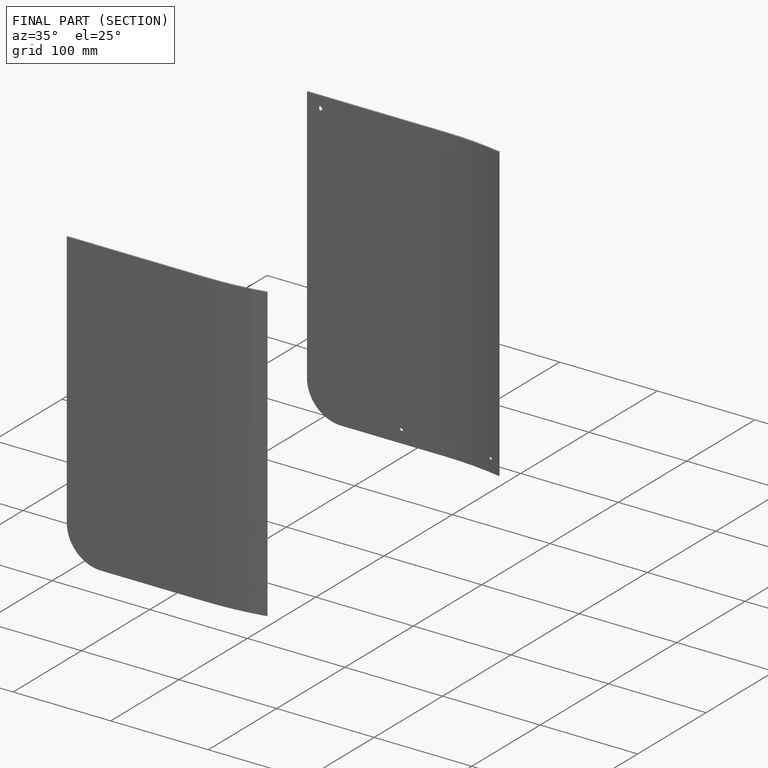
[diagram: finished part — half-section view (interior)]
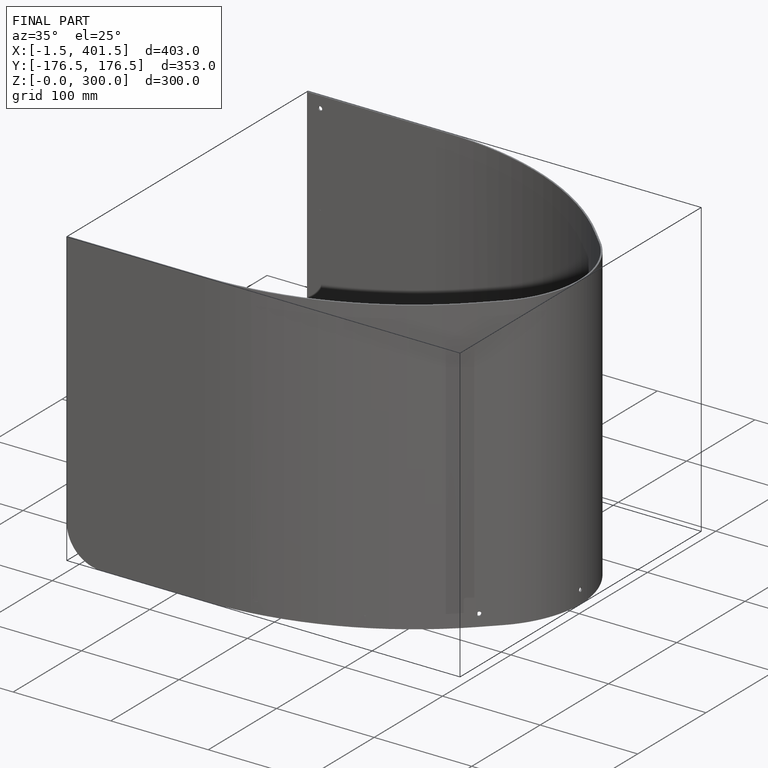
[diagram: finished part — iso view with bounding-box wireframe]
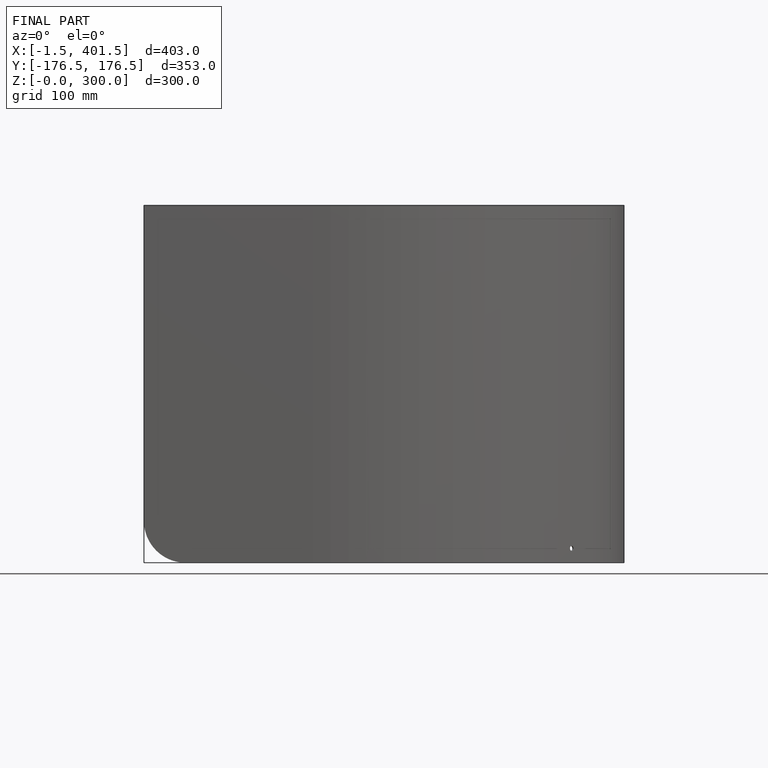
[diagram: finished part — front view with bounding-box wireframe]
